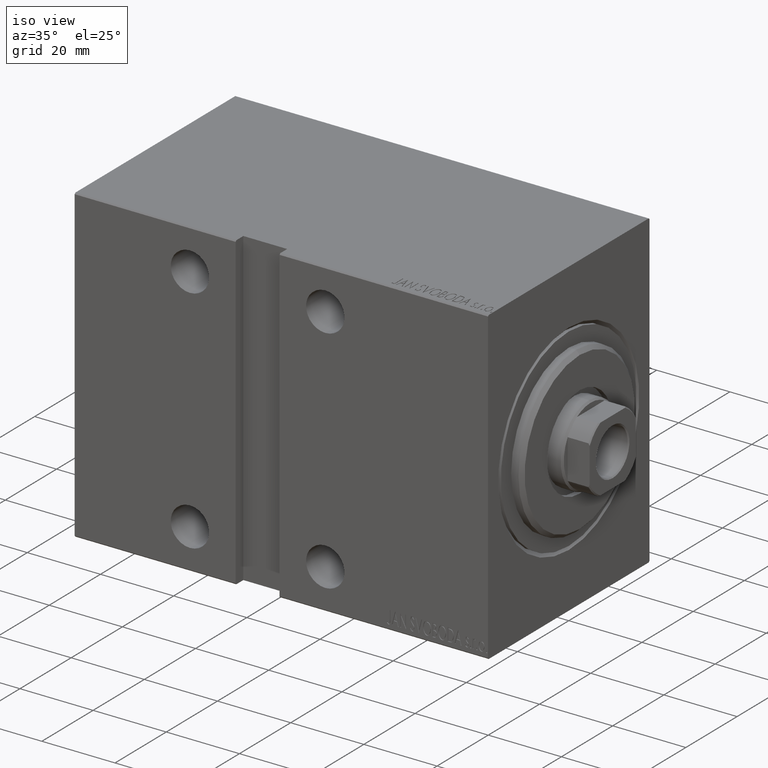
[diagram: clean part render]
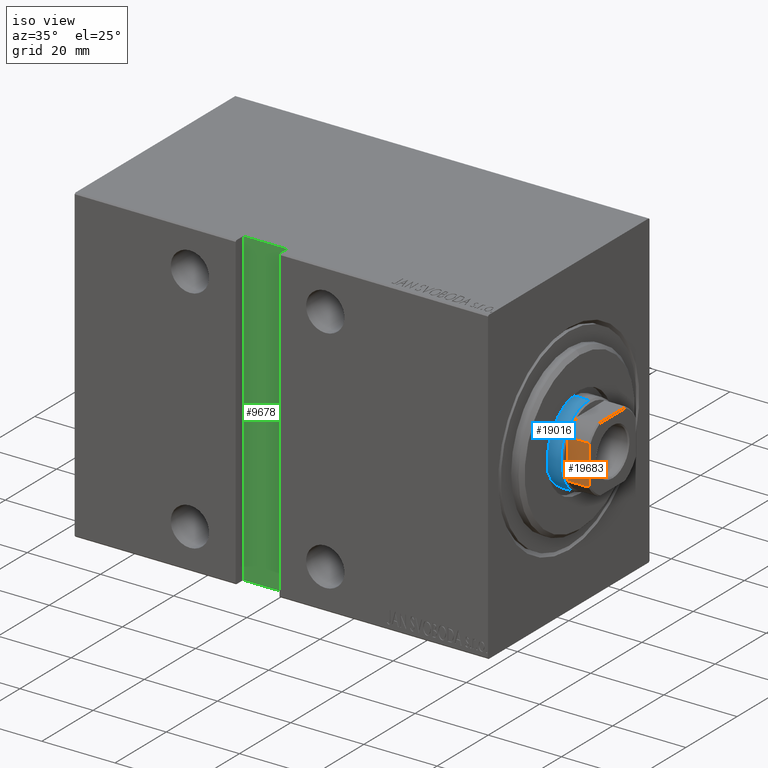
[diagram: same view with three faces highlighted in distinct colors, each labeled with its STEP entity id]
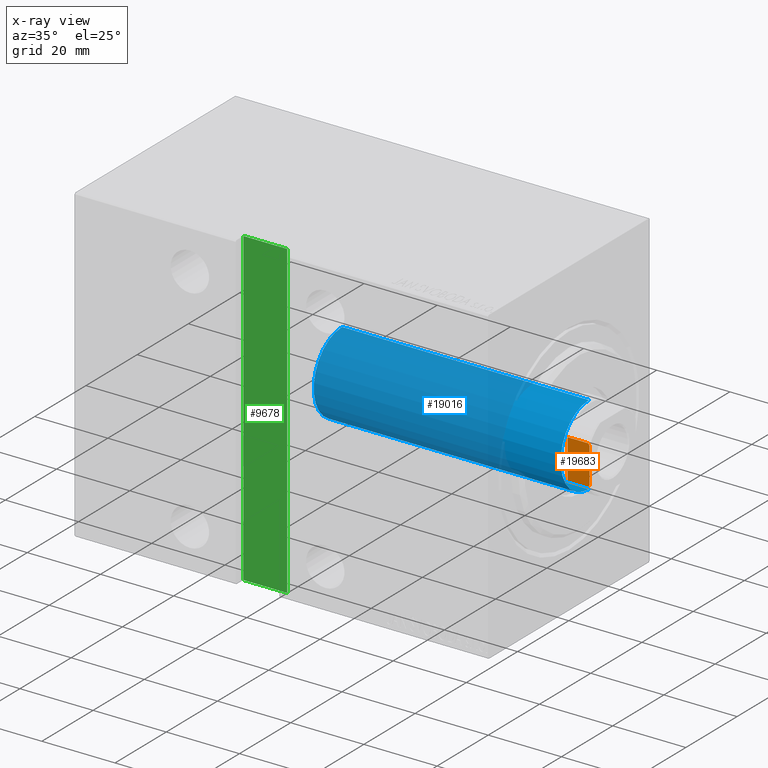
[diagram: x-ray of the same camera — body ghosted, the three highlighted faces saturated]
A machine part, iso view with three faces highlighted in distinct colors.
The next image is the same camera in x-ray (body ghosted, the three faces saturated) — at least one of them is partly hidden behind the body in this view.
Their STEP definitions:

[orange] entity #19683 — the highlighted planar face has unit normal (0, 1, 0).
#95 = AXIS2_PLACEMENT_3D ( 'NONE', #11810, #29264, #32540 ) ;
#628 = CARTESIAN_POINT ( 'NONE',  ( -5.004607318780325720, -9.000000000000001776, 112.9037142029269347 ) ) ;
#1725 = VECTOR ( 'NONE', #12539, 1000.000000000000000 ) ;
#1739 = VERTEX_POINT ( 'NONE', #42433 ) ;
#2652 = ORIENTED_EDGE ( 'NONE', *, *, #33466, .F. ) ;
#3825 = DIRECTION ( 'NONE',  ( 1.000000000000000000, 0.000000000000000000, 0.000000000000000000 ) ) ;
#4634 = ORIENTED_EDGE ( 'NONE', *, *, #32260, .T. ) ;
#5591 = CARTESIAN_POINT ( 'NONE',  ( -5.408326913195988794, -8.999999999999998224, -0.001000000000001000089 ) ) ;
#5794 = CARTESIAN_POINT ( 'NONE',  ( -4.800000000000036238, -9.000000000000001776, 113.0000000000000142 ) ) ;
#7035 = CARTESIAN_POINT ( 'NONE',  ( -5.408326913195988794, -8.999999999999998224, 112.7000000000000171 ) ) ;
#8956 = CARTESIAN_POINT ( 'NONE',  ( 4.800000000000029132, -9.000000000000001776, 113.0000000000000142 ) ) ;
#9515 = DIRECTION ( 'NONE',  ( -0.000000000000000000, -0.000000000000000000, 1.000000000000000000 ) ) ;
#9758 = DIRECTION ( 'NONE',  ( -0.000000000000000000, -0.000000000000000000, 1.000000000000000000 ) ) ;
#9940 = VERTEX_POINT ( 'NONE', #24945 ) ;
#11810 = CARTESIAN_POINT ( 'NONE',  ( -8.999999999999998224, -9.000000000000001776, 113.0000000000000142 ) ) ;
#12539 = DIRECTION ( 'NONE',  ( 1.000000000000000000, 0.000000000000000000, 0.000000000000000000 ) ) ;
#14131 = CARTESIAN_POINT ( 'NONE',  ( -4.800000000000036238, -9.000000000000001776, 113.0000000000000142 ) ) ;
#14261 = VECTOR ( 'NONE', #9515, 1000.000000000000000 ) ;
#14283 = VECTOR ( 'NONE', #3825, 1000.000000000000000 ) ;
#14341 = CARTESIAN_POINT ( 'NONE',  ( -5.207299490555487687, -9.000000000000001776, 112.8035449543007047 ) ) ;
#18954 = VERTEX_POINT ( 'NONE', #7035 ) ;
#19683 = ADVANCED_FACE ( 'NONE', ( #28605 ), #25333, .F. ) ;
#20224 = VERTEX_POINT ( 'NONE', #42012 ) ;
#20555 = EDGE_LOOP ( 'NONE', ( #35918, #4634, #37488, #27764, #2652, #32964 ) ) ;
#21029 = CARTESIAN_POINT ( 'NONE',  ( 5.408326913195988794, -8.999999999999998224, 112.7000000000000171 ) ) ;
#22030 = CARTESIAN_POINT ( 'NONE',  ( 5.004607318780325720, -9.000000000000001776, 112.9037142029269347 ) ) ;
#24691 = CARTESIAN_POINT ( 'NONE',  ( -8.999999999999998224, -9.000000000000001776, 107.0000000000000142 ) ) ;
#24945 = CARTESIAN_POINT ( 'NONE',  ( 4.800000000000029132, -9.000000000000001776, 113.0000000000000142 ) ) ;
#25333 = PLANE ( 'NONE',  #95 ) ;
#27443 = CARTESIAN_POINT ( 'NONE',  ( -5.408326913195988794, -8.999999999999998224, 112.7000000000000171 ) ) ;
#27764 = ORIENTED_EDGE ( 'NONE', *, *, #33347, .T. ) ;
#28605 = FACE_OUTER_BOUND ( 'NONE', #20555, .T. ) ;
#29128 = B_SPLINE_CURVE_WITH_KNOTS ( 'NONE', 3,
 ( #21029, #41890, #22030, #8956 ),
 .UNSPECIFIED., .F., .F.,
 ( 4, 4 ),
 ( 0.000000000000000000, 0.0006782784334758999636 ),
 .UNSPECIFIED. ) ;
#29264 = DIRECTION ( 'NONE',  ( 0.000000000000000000, 1.000000000000000000, 0.000000000000000000 ) ) ;
#29861 = EDGE_CURVE ( 'NONE', #32823, #9940, #32178, .T. ) ;
#30045 = LINE ( 'NONE', #33967, #35366 ) ;
#32178 = LINE ( 'NONE', #42417, #1725 ) ;
#32260 = EDGE_CURVE ( 'NONE', #20224, #9940, #29128, .T. ) ;
#32540 = DIRECTION ( 'NONE',  ( 0.000000000000000000, -0.000000000000000000, 1.000000000000000000 ) ) ;
#32823 = VERTEX_POINT ( 'NONE', #5794 ) ;
#32964 = ORIENTED_EDGE ( 'NONE', *, *, #34804, .T. ) ;
#33347 = EDGE_CURVE ( 'NONE', #32823, #18954, #39532, .T. ) ;
#33466 = EDGE_CURVE ( 'NONE', #1739, #18954, #38742, .T. ) ;
#33967 = CARTESIAN_POINT ( 'NONE',  ( 5.408326913195988794, -8.999999999999998224, -0.001000000000001000089 ) ) ;
#34804 = EDGE_CURVE ( 'NONE', #1739, #39012, #41270, .T. ) ;
#35366 = VECTOR ( 'NONE', #9758, 1000.000000000000000 ) ;
#35918 = ORIENTED_EDGE ( 'NONE', *, *, #41364, .T. ) ;
#37488 = ORIENTED_EDGE ( 'NONE', *, *, #29861, .F. ) ;
#38742 = LINE ( 'NONE', #5591, #14261 ) ;
#39012 = VERTEX_POINT ( 'NONE', #40179 ) ;
#39532 = B_SPLINE_CURVE_WITH_KNOTS ( 'NONE', 3,
 ( #14131, #628, #14341, #27443 ),
 .UNSPECIFIED., .F., .F.,
 ( 4, 4 ),
 ( 0.000000000000000000, 0.0006782784334758944341 ),
 .UNSPECIFIED. ) ;
#40179 = CARTESIAN_POINT ( 'NONE',  ( 5.408326913195988794, -8.999999999999998224, 107.0000000000000142 ) ) ;
#41270 = LINE ( 'NONE', #24691, #14283 ) ;
#41364 = EDGE_CURVE ( 'NONE', #39012, #20224, #30045, .T. ) ;
#41890 = CARTESIAN_POINT ( 'NONE',  ( 5.207299490555483246, -8.999999999999998224, 112.8035449543007047 ) ) ;
#42012 = CARTESIAN_POINT ( 'NONE',  ( 5.408326913195988794, -8.999999999999998224, 112.7000000000000171 ) ) ;
#42417 = CARTESIAN_POINT ( 'NONE',  ( -8.999999999999998224, -9.000000000000001776, 113.0000000000000142 ) ) ;
#42433 = CARTESIAN_POINT ( 'NONE',  ( -5.408326913195988794, -8.999999999999998224, 107.0000000000000142 ) ) ;

[blue] entity #19016 — the highlighted cylindrical surface (partial cylindrical patch) has radius 11 mm, axis along (-1, -0, 0).
#1140 = CYLINDRICAL_SURFACE ( 'NONE', #8525, 11.00000000000000000 ) ;
#2333 = DIRECTION ( 'NONE',  ( 1.000000000000000000, 0.000000000000000000, 0.000000000000000000 ) ) ;
#3125 = ORIENTED_EDGE ( 'NONE', *, *, #21912, .T. ) ;
#5490 = VERTEX_POINT ( 'NONE', #28382 ) ;
#8433 = ORIENTED_EDGE ( 'NONE', *, *, #13407, .F. ) ;
#8525 = AXIS2_PLACEMENT_3D ( 'NONE', #31442, #37572, #17705 ) ;
#12600 = VECTOR ( 'NONE', #24323, 1000.000000000000000 ) ;
#13176 = ORIENTED_EDGE ( 'NONE', *, *, #21241, .T. ) ;
#13407 = EDGE_CURVE ( 'NONE', #22524, #33292, #40264, .T. ) ;
#13591 = ORIENTED_EDGE ( 'NONE', *, *, #33070, .T. ) ;
#14078 = CARTESIAN_POINT ( 'NONE',  ( 11.00000000000000000, 1.347111479062088405E-15, 107.0000000000000142 ) ) ;
#16860 = CIRCLE ( 'NONE', #37061, 11.00000000000000000 ) ;
#17671 = LINE ( 'NONE', #41012, #25391 ) ;
#17705 = DIRECTION ( 'NONE',  ( -1.000000000000000000, 0.000000000000000000, 0.000000000000000000 ) ) ;
#19016 = ADVANCED_FACE ( 'NONE', ( #20969 ), #1140, .T. ) ;
#20969 = FACE_OUTER_BOUND ( 'NONE', #37492, .T. ) ;
#21005 = AXIS2_PLACEMENT_3D ( 'NONE', #35067, #32221, #2333 ) ;
#21241 = EDGE_CURVE ( 'NONE', #29711, #33292, #39820, .T. ) ;
#21272 = CARTESIAN_POINT ( 'NONE',  ( -11.00000000000000000, 0.000000000000000000, 39.00000000000000000 ) ) ;
#21912 = EDGE_CURVE ( 'NONE', #22524, #5490, #16860, .T. ) ;
#22524 = VERTEX_POINT ( 'NONE', #41115 ) ;
#24323 = DIRECTION ( 'NONE',  ( -0.000000000000000000, -0.000000000000000000, -1.000000000000000000 ) ) ;
#25391 = VECTOR ( 'NONE', #37754, 1000.000000000000000 ) ;
#26473 = DIRECTION ( 'NONE',  ( 0.000000000000000000, 0.000000000000000000, -1.000000000000000000 ) ) ;
#26904 = CARTESIAN_POINT ( 'NONE',  ( 0.000000000000000000, 0.000000000000000000, 106.5000000000000000 ) ) ;
#28382 = CARTESIAN_POINT ( 'NONE',  ( -11.00000000000000000, 0.000000000000000000, 106.5000000000000000 ) ) ;
#29637 = CARTESIAN_POINT ( 'NONE',  ( 11.00000000000000000, 1.347111479062088405E-15, 39.00000000000000000 ) ) ;
#29711 = VERTEX_POINT ( 'NONE', #21272 ) ;
#31442 = CARTESIAN_POINT ( 'NONE',  ( 0.000000000000000000, 0.000000000000000000, 107.0000000000000142 ) ) ;
#32221 = DIRECTION ( 'NONE',  ( 0.000000000000000000, 0.000000000000000000, 1.000000000000000000 ) ) ;
#33070 = EDGE_CURVE ( 'NONE', #5490, #29711, #17671, .T. ) ;
#33292 = VERTEX_POINT ( 'NONE', #29637 ) ;
#33884 = DIRECTION ( 'NONE',  ( 1.000000000000000000, 0.000000000000000000, 0.000000000000000000 ) ) ;
#35067 = CARTESIAN_POINT ( 'NONE',  ( 0.000000000000000000, 0.000000000000000000, 39.00000000000000000 ) ) ;
#37061 = AXIS2_PLACEMENT_3D ( 'NONE', #26904, #26473, #33884 ) ;
#37492 = EDGE_LOOP ( 'NONE', ( #8433, #3125, #13591, #13176 ) ) ;
#37572 = DIRECTION ( 'NONE',  ( -0.000000000000000000, -0.000000000000000000, -1.000000000000000000 ) ) ;
#37754 = DIRECTION ( 'NONE',  ( -0.000000000000000000, -0.000000000000000000, -1.000000000000000000 ) ) ;
#39820 = CIRCLE ( 'NONE', #21005, 11.00000000000000000 ) ;
#40264 = LINE ( 'NONE', #14078, #12600 ) ;
#41012 = CARTESIAN_POINT ( 'NONE',  ( -11.00000000000000000, 0.000000000000000000, 107.0000000000000142 ) ) ;
#41115 = CARTESIAN_POINT ( 'NONE',  ( 11.00000000000000000, 1.347111479062088405E-15, 106.5000000000000000 ) ) ;

[green] entity #9678 — the highlighted planar face has unit normal (-0, 1, -0).
#1735 = EDGE_CURVE ( 'NONE', #27146, #10322, #5578, .T. ) ;
#2604 = ORIENTED_EDGE ( 'NONE', *, *, #21381, .T. ) ;
#3407 = CARTESIAN_POINT ( 'NONE',  ( 57.00000000000000000, 28.50000000000001421, -42.50000000000002842 ) ) ;
#3475 = DIRECTION ( 'NONE',  ( 0.000000000000000000, 1.632680918566406054E-16, -1.000000000000000000 ) ) ;
#4741 = CARTESIAN_POINT ( 'NONE',  ( 57.00000000000000000, 28.50000000000000000, 42.50000000000000000 ) ) ;
#4875 = LINE ( 'NONE', #26230, #40973 ) ;
#5531 = AXIS2_PLACEMENT_3D ( 'NONE', #20258, #33369, #3475 ) ;
#5578 = LINE ( 'NONE', #18653, #26346 ) ;
#6851 = LINE ( 'NONE', #16873, #31086 ) ;
#9678 = ADVANCED_FACE ( 'NONE', ( #39911 ), #10023, .F. ) ;
#10023 = PLANE ( 'NONE',  #5531 ) ;
#10322 = VERTEX_POINT ( 'NONE', #25745 ) ;
#13011 = CARTESIAN_POINT ( 'NONE',  ( 57.00000000000000000, 28.50000000000001421, -42.50000000000002842 ) ) ;
#15388 = DIRECTION ( 'NONE',  ( 1.000000000000000000, -0.000000000000000000, -0.000000000000000000 ) ) ;
#15538 = DIRECTION ( 'NONE',  ( -1.000000000000000000, 0.000000000000000000, 0.000000000000000000 ) ) ;
#16709 = DIRECTION ( 'NONE',  ( 0.000000000000000000, -1.632680918566406054E-16, 1.000000000000000000 ) ) ;
#16873 = CARTESIAN_POINT ( 'NONE',  ( 69.00000000000000000, 28.50000000000001421, -42.50000000000002842 ) ) ;
#18085 = ORIENTED_EDGE ( 'NONE', *, *, #36865, .T. ) ;
#18653 = CARTESIAN_POINT ( 'NONE',  ( 68.99999999999998579, 28.50000000000000000, 42.50000000000000000 ) ) ;
#19386 = ORIENTED_EDGE ( 'NONE', *, *, #42555, .T. ) ;
#20258 = CARTESIAN_POINT ( 'NONE',  ( 0.000000000000000000, 28.50000000000000711, 4.764459771452876840E-15 ) ) ;
#20792 = DIRECTION ( 'NONE',  ( 1.632680918566406054E-16, 1.632680918566406054E-16, -1.000000000000000000 ) ) ;
#21166 = ORIENTED_EDGE ( 'NONE', *, *, #1735, .T. ) ;
#21381 = EDGE_CURVE ( 'NONE', #36476, #27146, #42460, .T. ) ;
#24502 = VECTOR ( 'NONE', #16709, 1000.000000000000000 ) ;
#25745 = CARTESIAN_POINT ( 'NONE',  ( 68.99999999999998579, 28.50000000000000000, 42.50000000000000000 ) ) ;
#26230 = CARTESIAN_POINT ( 'NONE',  ( 69.00000000000000000, 28.50000000000001421, -42.50000000000002842 ) ) ;
#26346 = VECTOR ( 'NONE', #15388, 1000.000000000000000 ) ;
#27146 = VERTEX_POINT ( 'NONE', #4741 ) ;
#28197 = EDGE_LOOP ( 'NONE', ( #2604, #21166, #18085, #19386 ) ) ;
#31086 = VECTOR ( 'NONE', #20792, 1000.000000000000000 ) ;
#33369 = DIRECTION ( 'NONE',  ( 0.000000000000000000, -1.000000000000000000, -1.632680918566406054E-16 ) ) ;
#36476 = VERTEX_POINT ( 'NONE', #13011 ) ;
#36865 = EDGE_CURVE ( 'NONE', #10322, #37013, #6851, .T. ) ;
#37013 = VERTEX_POINT ( 'NONE', #38452 ) ;
#38452 = CARTESIAN_POINT ( 'NONE',  ( 69.00000000000000000, 28.50000000000001066, -42.50000000000000711 ) ) ;
#39911 = FACE_OUTER_BOUND ( 'NONE', #28197, .T. ) ;
#40973 = VECTOR ( 'NONE', #15538, 1000.000000000000000 ) ;
#42460 = LINE ( 'NONE', #3407, #24502 ) ;
#42555 = EDGE_CURVE ( 'NONE', #37013, #36476, #4875, .T. ) ;